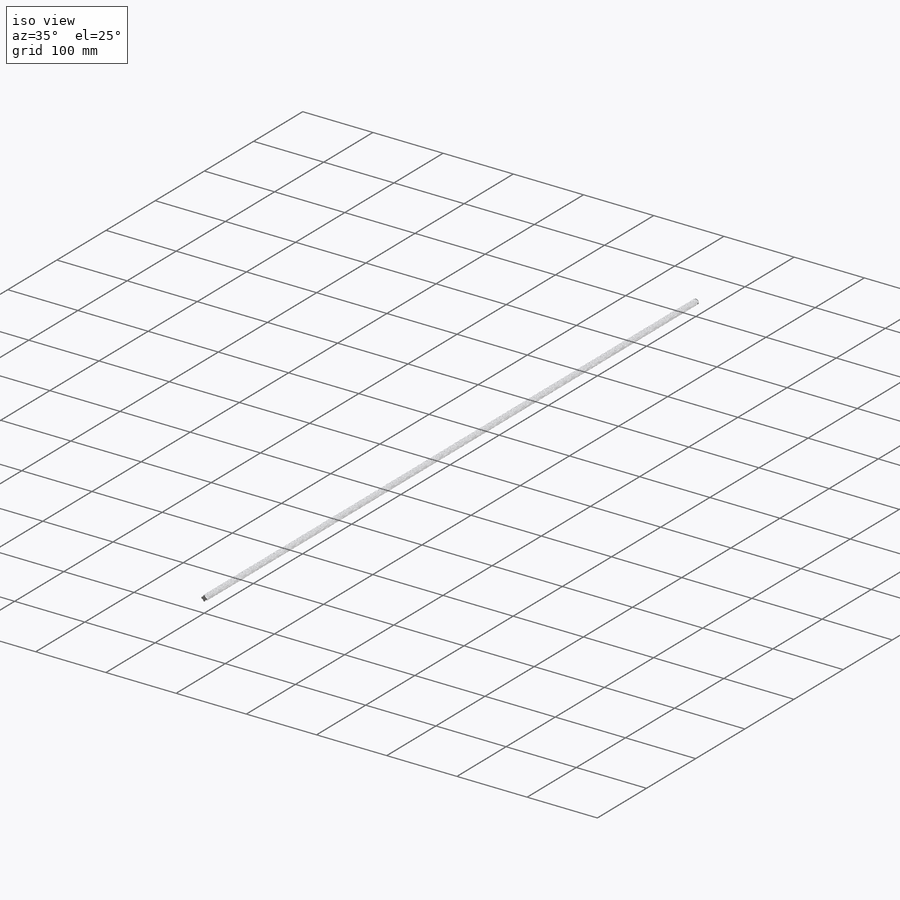
[diagram: iso view]
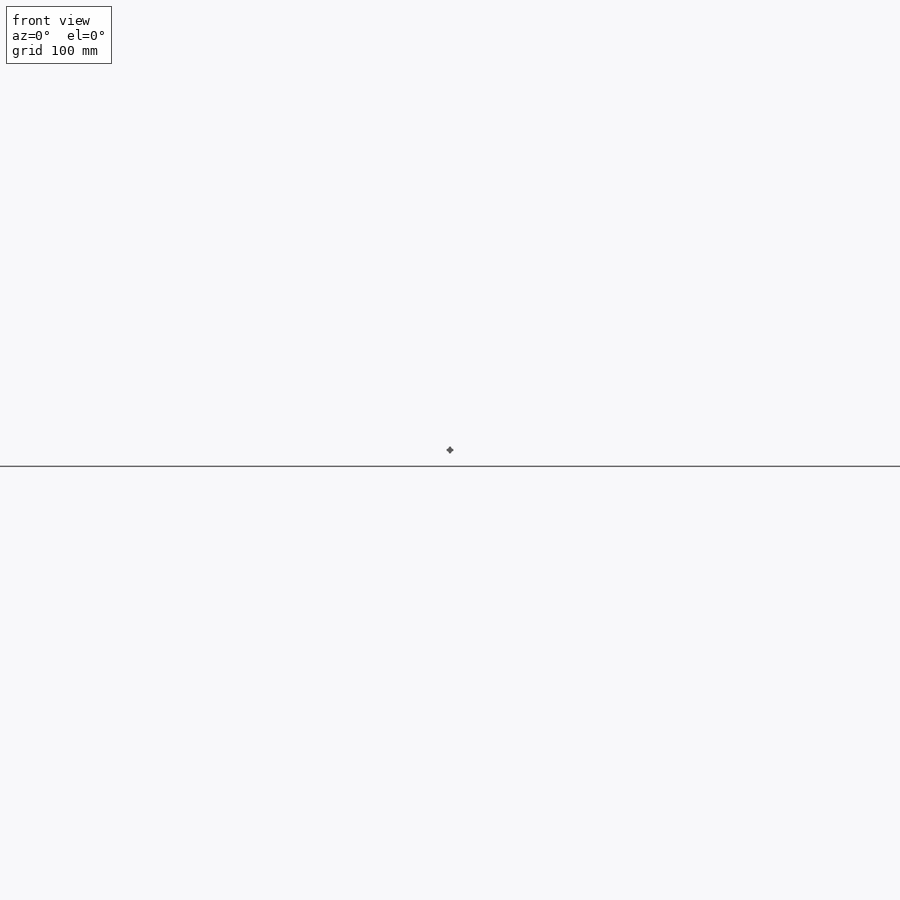
[diagram: front view]
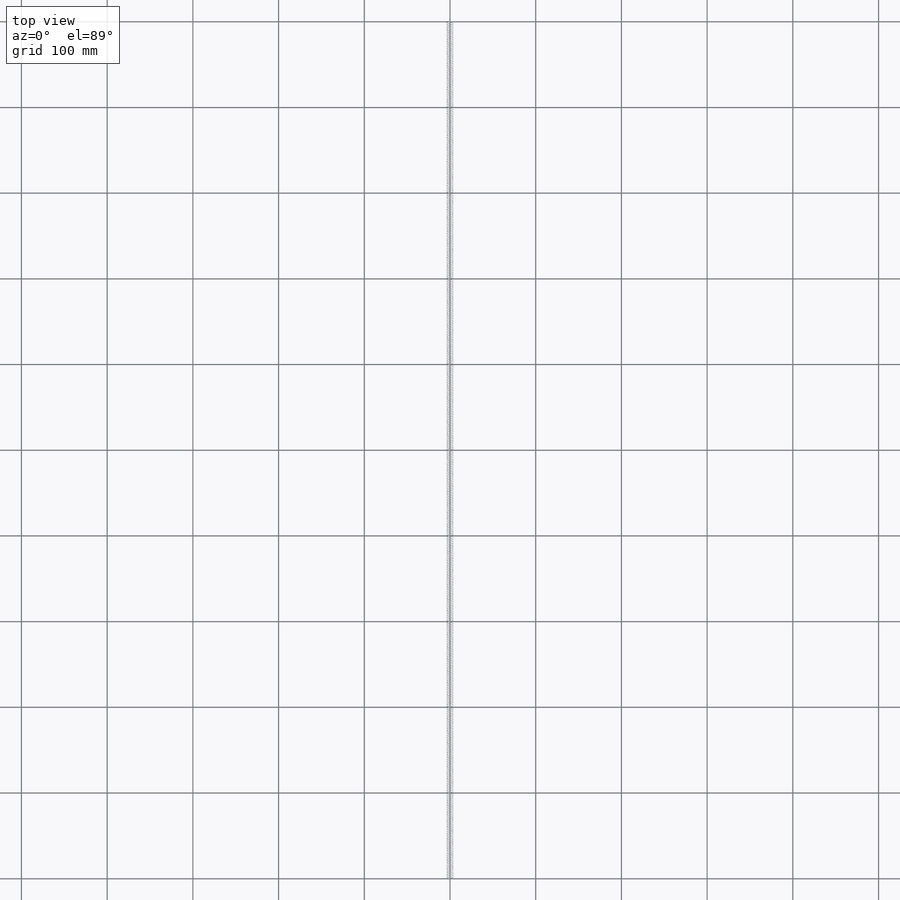
[diagram: top view]
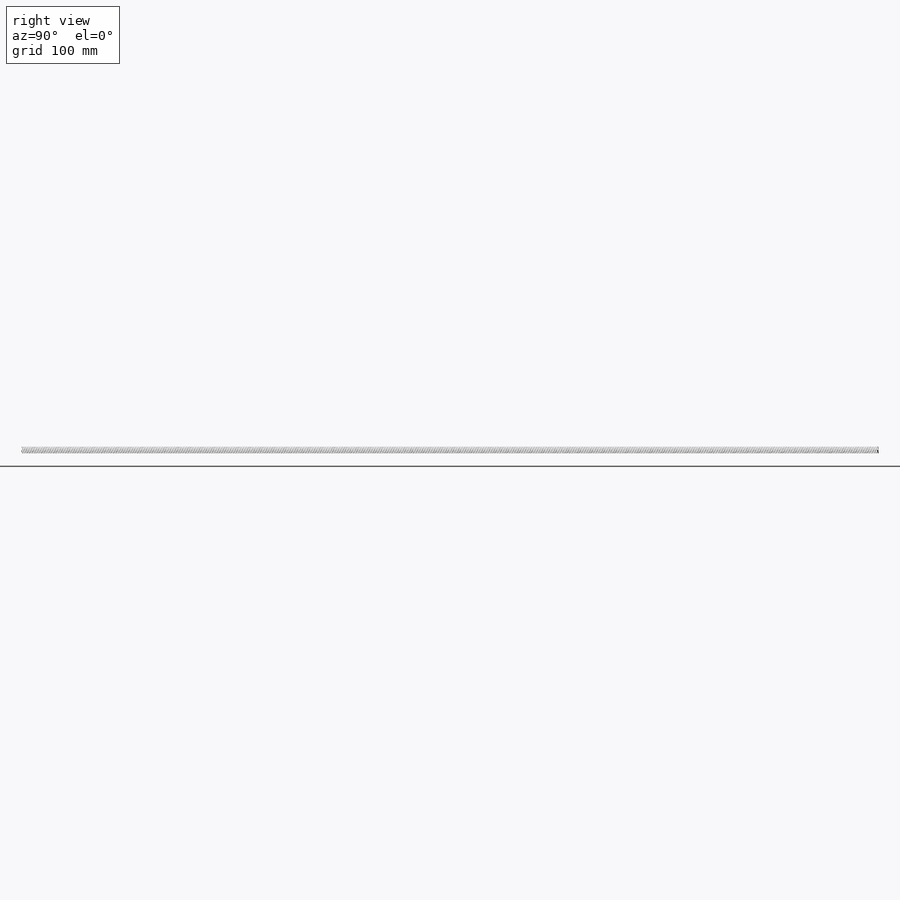
[diagram: right view]
SOLIDWORKS PART (.sldprt)
format: sldprt  version: not decoded by parser v0  size: 7,892,992 bytes
history: native  units: mm
features: sketch x11, helix x4, sweep x4, plane x2, material x1, extrude x1 (+12 scaffold rows collapsed)
feature tree (35):
  scaffold x12  (default folders/planes/origin — collapsed)
  material  "Material <not specified>"
  sketch  "Sketch1"  dims[D1=8.0mm]
  extrude  "Boss-Extrude1"  Depth=1000mm
  plane  "Plane2"  Offset=1mm
  sketch  "Sketch2"  dims[D1=8.1mm]
  helix  "Helix/Spiral1"  Pitch=1000mm
  sketch  "Sketch3"  dims[D2=8.0mm D1=0.0mm]
  sketch  "Sketch4"
  helix  "Helix/Spiral2"  Pitch=1000mm
  sketch  "Sketch5"
  helix  "Helix/Spiral3"  Pitch=1000mm
  sketch  "Sketch6"
  helix  "Helix/Spiral4"  Pitch=1000mm
  sketch  "Sketch10"  dims[c1.D1=4.0mm c1.D2=2.0mm c1.D3=4.0mm c2.D3=15.0deg c2.D4=~2.965821mm c3.D4=15.0deg c3.D1=2.0mm c3.D5=2.0mm c3.D6=~3.732051mm c4.D6=15.0deg c5.D6=1.15mm c5.D7=3.85mm c5.D1=1.15mm c5.D2=~3.190888mm c6.D2=~40.968319deg c7.D2=8.0mm c8.D2=15.0deg c8.D3=~3.283054mm c9.D3=30.0deg c9.D4=~5.996857mm c10.D4=30.0deg c10.D5=2.0mm c10.D6=0.5mm c10.D7=~1.344107mm c10.D8=~0.707893mm c10.D9=~1.195881mm c11.D9=~149.077622deg c12.D9=~0.328072mm c12.D1=1.15mm c12.D6=0.71mm c13.D9=1.34mm c13.D10=~0.398162mm c14.D10=75.0deg c14.D11=1.15mm]
  sweep  "Cut-Sweep3"
  sketch  "Sketch11"  dims[c1.D1=1.34mm c1.D2=0.71mm c1.D3=1.15mm c1.D4=1.34mm c2.D4=75.0deg]
  sweep  "Cut-Sweep4"
  sketch  "Sketch12"
  plane  "Plane3"
  sketch  "Sketch13"  dims[c1.D1=1.34mm c1.D2=0.72mm c1.D3=1.15mm c1.D4=1.34mm c2.D4=75.0deg]
  sweep  "Cut-Sweep5"
  sketch  "Sketch14"  dims[c1.D1=1.34mm c1.D2=0.71mm c1.D3=1.15mm c1.D4=~1.15156mm c2.D4=75.0deg]
  sweep  "Cut-Sweep6"
decode coverage: 12 of 20 modeling features carry decoded parameters
note: ~ marks probable driven/reference dimensions
summary: profile_refs inferred from adjacent sketches, not decoded
note: suppression state not decoded; provenance and decode notes live in map.json
